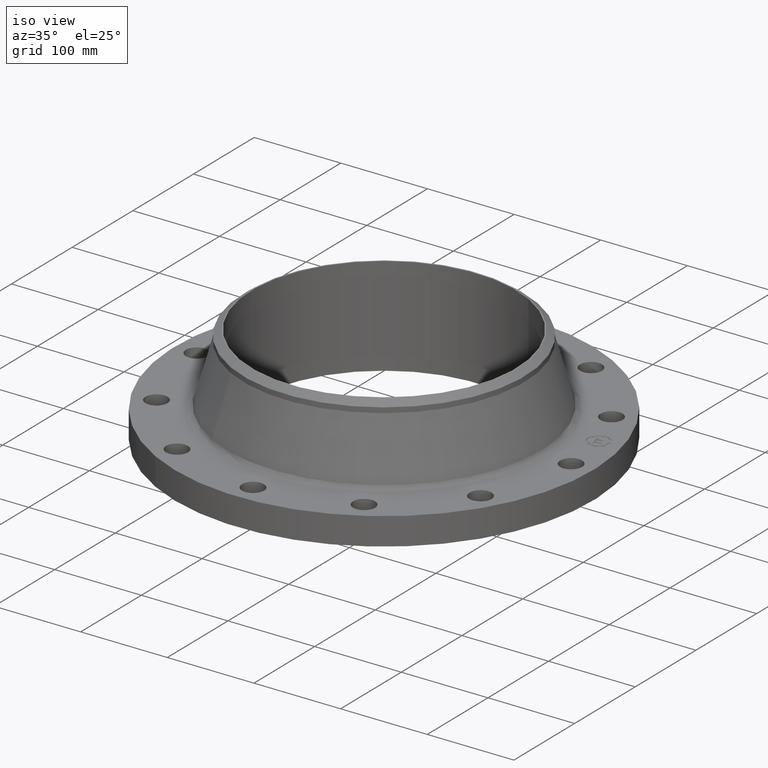
[diagram: clean part render]
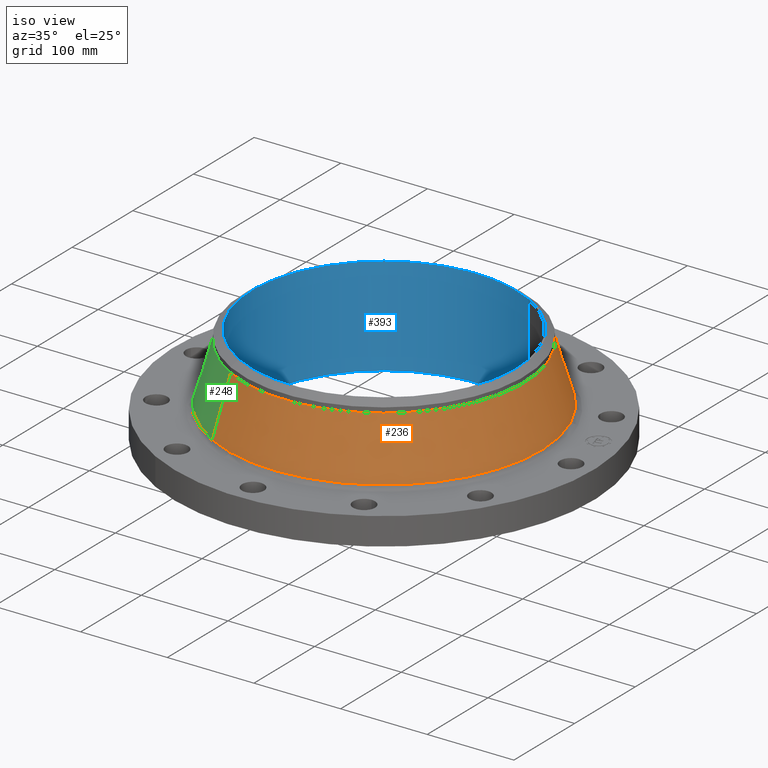
[diagram: same view with three faces highlighted in distinct colors, each labeled with its STEP entity id]
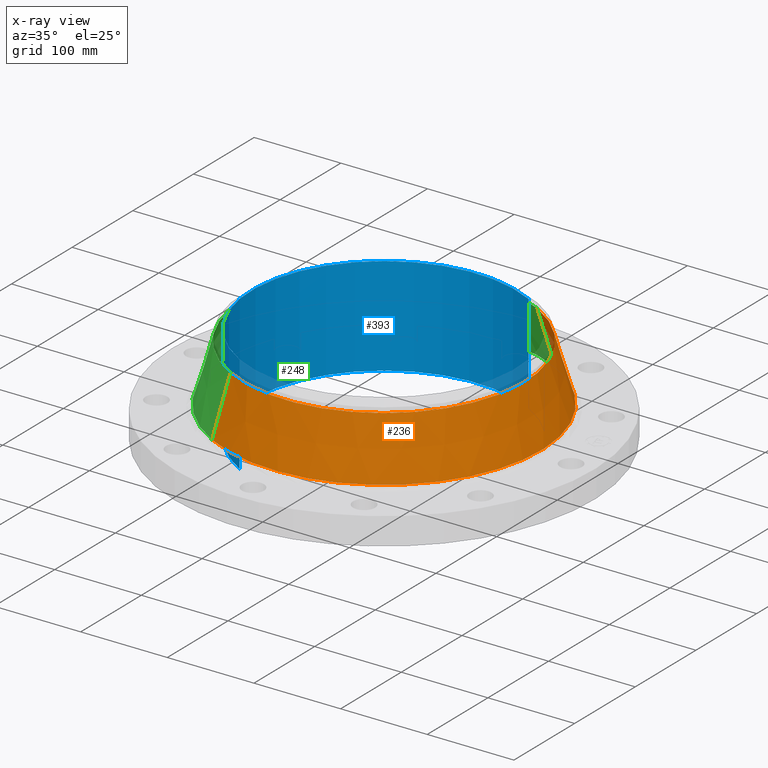
[diagram: x-ray of the same camera — body ghosted, the three highlighted faces saturated]
A machine part, iso view with three faces highlighted in distinct colors.
The next image is the same camera in x-ray (body ghosted, the three faces saturated) — at least one of them is partly hidden behind the body in this view.
Their STEP definitions:

[orange] entity #236 — the highlighted conical surface has half-angle 16.373 deg.
#172=AXIS2_PLACEMENT_3D('Circle Axis2P3D',#170,#171,$) ;
#209=AXIS2_PLACEMENT_3D('Cone Axis2P3D',#206,#207,#208) ;
#220=AXIS2_PLACEMENT_3D('Circle Axis2P3D',#218,#219,$) ;
#167=CARTESIAN_POINT('Vertex',(3.42178205362,6.26353003553,1.42952840529)) ;
#170=CARTESIAN_POINT('Axis2P3D Location',(0.,0.,1.42952840529)) ;
#174=CARTESIAN_POINT('Vertex',(-3.42178205362,-6.26353003553,1.42952840529)) ;
#206=CARTESIAN_POINT('Axis2P3D Location',(0.,0.,4.02398984383)) ;
#211=CARTESIAN_POINT('Line Origine',(3.23905993112,5.9290594338,2.72675912456)) ;
#215=CARTESIAN_POINT('Vertex',(3.05633780861,5.59458883207,4.02398984383)) ;
#218=CARTESIAN_POINT('Axis2P3D Location',(0.,0.,4.02398984383)) ;
#222=CARTESIAN_POINT('Vertex',(-3.05633780861,-5.59458883207,4.02398984383)) ;
#225=CARTESIAN_POINT('Line Origine',(-3.23905993112,-5.9290594338,2.72675912456)) ;
#171=DIRECTION('Axis2P3D Direction',(0.,0.,-0.0393700787402)) ;
#207=DIRECTION('Axis2P3D Direction',(0.,0.,-0.0393700787402)) ;
#208=DIRECTION('Axis2P3D XDirection',(-0.0188750212049,-0.0345504945626,0.)) ;
#212=DIRECTION('Vector Direction',(0.00532061137862,0.00973931380057,-0.0377735351967)) ;
#219=DIRECTION('Axis2P3D Direction',(0.,0.,-0.0393700787402)) ;
#226=DIRECTION('Vector Direction',(-0.00532061137862,-0.00973931380057,-0.0377735351967)) ;
#213=VECTOR('Line Direction',#212,0.0393700787402) ;
#227=VECTOR('Line Direction',#226,0.0393700787402) ;
#231=ORIENTED_EDGE('',*,*,#176,.F.) ;
#232=ORIENTED_EDGE('',*,*,#217,.T.) ;
#233=ORIENTED_EDGE('',*,*,#224,.T.) ;
#234=ORIENTED_EDGE('',*,*,#229,.F.) ;
#236=ADVANCED_FACE('PartBody',(#235),#210,.T.) ;
#173=CIRCLE('generated circle',#172,7.13725443911) ;
#221=CIRCLE('generated circle',#220,6.37500000003) ;
#210=CONICAL_SURFACE('Cone',#209,6.37500000003,0.285759651874) ;
#176=EDGE_CURVE('',#168,#175,#173,.T.) ;
#217=EDGE_CURVE('',#168,#216,#214,.F.) ;
#224=EDGE_CURVE('',#216,#223,#221,.T.) ;
#229=EDGE_CURVE('',#175,#223,#228,.F.) ;
#230=EDGE_LOOP('',(#231,#232,#233,#234)) ;
#235=FACE_OUTER_BOUND('',#230,.T.) ;
#214=LINE('Line',#211,#213) ;
#228=LINE('Line',#225,#227) ;
#168=VERTEX_POINT('',#167) ;
#175=VERTEX_POINT('',#174) ;
#216=VERTEX_POINT('',#215) ;
#223=VERTEX_POINT('',#222) ;

[blue] entity #393 — the highlighted cylindrical surface (partial cylindrical patch) has radius 152.4 mm, axis along (0, 0, -1).
#346=AXIS2_PLACEMENT_3D('Circle Axis2P3D',#344,#345,$) ;
#366=AXIS2_PLACEMENT_3D('Cylinder Axis2P3D',#363,#364,#365) ;
#377=AXIS2_PLACEMENT_3D('Circle Axis2P3D',#375,#376,$) ;
#344=CARTESIAN_POINT('Axis2P3D Location',(-5.59482469102E-016,-1.39870617276E-016,4.50000000002)) ;
#348=CARTESIAN_POINT('Vertex',(-2.87655323164,-5.26549537136,4.50000000002)) ;
#350=CARTESIAN_POINT('Vertex',(2.87655323164,5.26549537136,4.50000000002)) ;
#363=CARTESIAN_POINT('Axis2P3D Location',(0.,0.,2.30000000001)) ;
#368=CARTESIAN_POINT('Line Origine',(-2.87655323164,-5.26549537136,2.25000000001)) ;
#372=CARTESIAN_POINT('Vertex',(-2.87655323164,-5.26549537136,-3.27297244425E-014)) ;
#375=CARTESIAN_POINT('Axis2P3D Location',(0.,0.,-3.3009465677E-014)) ;
#379=CARTESIAN_POINT('Vertex',(2.87655323164,5.26549537136,-3.27297244425E-014)) ;
#382=CARTESIAN_POINT('Line Origine',(2.87655323164,5.26549537136,2.25000000001)) ;
#345=DIRECTION('Axis2P3D Direction',(0.,-0.,-0.0393700787402)) ;
#364=DIRECTION('Axis2P3D Direction',(0.,0.,-0.0393700787402)) ;
#365=DIRECTION('Axis2P3D XDirection',(0.0188750212049,0.0345504945626,0.)) ;
#369=DIRECTION('Vector Direction',(0.,0.,-0.0393700787402)) ;
#376=DIRECTION('Axis2P3D Direction',(0.,0.,-0.0393700787402)) ;
#383=DIRECTION('Vector Direction',(0.,0.,-0.0393700787402)) ;
#370=VECTOR('Line Direction',#369,0.0393700787402) ;
#384=VECTOR('Line Direction',#383,0.0393700787402) ;
#388=ORIENTED_EDGE('',*,*,#374,.T.) ;
#389=ORIENTED_EDGE('',*,*,#381,.T.) ;
#390=ORIENTED_EDGE('',*,*,#386,.F.) ;
#391=ORIENTED_EDGE('',*,*,#352,.F.) ;
#393=ADVANCED_FACE('PartBody',(#392),#367,.F.) ;
#347=CIRCLE('generated circle',#346,6.00000000002) ;
#378=CIRCLE('generated circle',#377,6.00000000002) ;
#367=CYLINDRICAL_SURFACE('generated cylinder',#366,6.00000000002) ;
#352=EDGE_CURVE('',#349,#351,#347,.T.) ;
#374=EDGE_CURVE('',#349,#373,#371,.T.) ;
#381=EDGE_CURVE('',#373,#380,#378,.T.) ;
#386=EDGE_CURVE('',#351,#380,#385,.T.) ;
#387=EDGE_LOOP('',(#388,#389,#390,#391)) ;
#392=FACE_OUTER_BOUND('',#387,.T.) ;
#371=LINE('Line',#368,#370) ;
#385=LINE('Line',#382,#384) ;
#349=VERTEX_POINT('',#348) ;
#351=VERTEX_POINT('',#350) ;
#373=VERTEX_POINT('',#372) ;
#380=VERTEX_POINT('',#379) ;

[green] entity #248 — the highlighted conical surface has half-angle 16.373 deg.
#196=AXIS2_PLACEMENT_3D('Circle Axis2P3D',#194,#195,$) ;
#209=AXIS2_PLACEMENT_3D('Cone Axis2P3D',#206,#207,#208) ;
#239=AXIS2_PLACEMENT_3D('Circle Axis2P3D',#237,#238,$) ;
#167=CARTESIAN_POINT('Vertex',(3.42178205362,6.26353003553,1.42952840529)) ;
#174=CARTESIAN_POINT('Vertex',(-3.42178205362,-6.26353003553,1.42952840529)) ;
#194=CARTESIAN_POINT('Axis2P3D Location',(0.,0.,1.42952840529)) ;
#206=CARTESIAN_POINT('Axis2P3D Location',(0.,0.,4.02398984383)) ;
#211=CARTESIAN_POINT('Line Origine',(3.23905993112,5.9290594338,2.72675912456)) ;
#215=CARTESIAN_POINT('Vertex',(3.05633780861,5.59458883207,4.02398984383)) ;
#222=CARTESIAN_POINT('Vertex',(-3.05633780861,-5.59458883207,4.02398984383)) ;
#225=CARTESIAN_POINT('Line Origine',(-3.23905993112,-5.9290594338,2.72675912456)) ;
#237=CARTESIAN_POINT('Axis2P3D Location',(0.,0.,4.02398984383)) ;
#195=DIRECTION('Axis2P3D Direction',(0.,0.,-0.0393700787402)) ;
#207=DIRECTION('Axis2P3D Direction',(0.,0.,-0.0393700787402)) ;
#208=DIRECTION('Axis2P3D XDirection',(-0.0188750212049,-0.0345504945626,0.)) ;
#212=DIRECTION('Vector Direction',(0.00532061137862,0.00973931380057,-0.0377735351967)) ;
#226=DIRECTION('Vector Direction',(-0.00532061137862,-0.00973931380057,-0.0377735351967)) ;
#238=DIRECTION('Axis2P3D Direction',(0.,0.,-0.0393700787402)) ;
#213=VECTOR('Line Direction',#212,0.0393700787402) ;
#227=VECTOR('Line Direction',#226,0.0393700787402) ;
#243=ORIENTED_EDGE('',*,*,#198,.F.) ;
#244=ORIENTED_EDGE('',*,*,#229,.T.) ;
#245=ORIENTED_EDGE('',*,*,#241,.T.) ;
#246=ORIENTED_EDGE('',*,*,#217,.F.) ;
#248=ADVANCED_FACE('PartBody',(#247),#210,.T.) ;
#197=CIRCLE('generated circle',#196,7.13725443911) ;
#240=CIRCLE('generated circle',#239,6.37500000003) ;
#210=CONICAL_SURFACE('Cone',#209,6.37500000003,0.285759651874) ;
#198=EDGE_CURVE('',#175,#168,#197,.T.) ;
#217=EDGE_CURVE('',#168,#216,#214,.F.) ;
#229=EDGE_CURVE('',#175,#223,#228,.F.) ;
#241=EDGE_CURVE('',#223,#216,#240,.T.) ;
#242=EDGE_LOOP('',(#243,#244,#245,#246)) ;
#247=FACE_OUTER_BOUND('',#242,.T.) ;
#214=LINE('Line',#211,#213) ;
#228=LINE('Line',#225,#227) ;
#168=VERTEX_POINT('',#167) ;
#175=VERTEX_POINT('',#174) ;
#216=VERTEX_POINT('',#215) ;
#223=VERTEX_POINT('',#222) ;